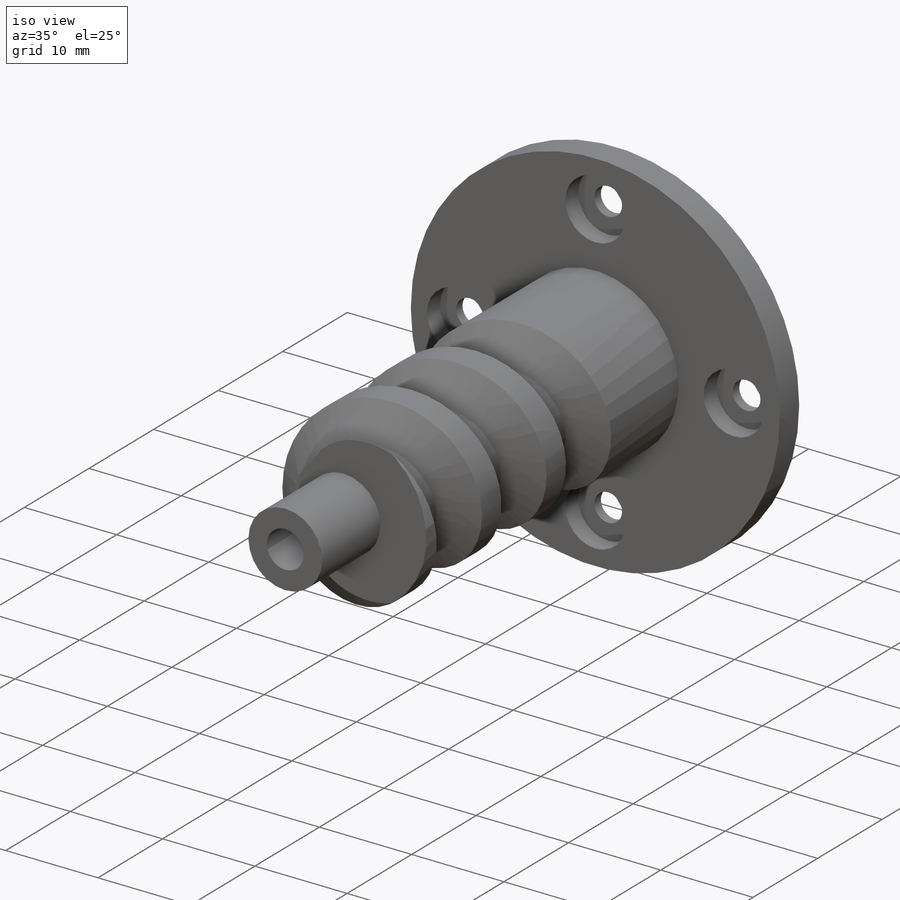
[diagram: iso view]
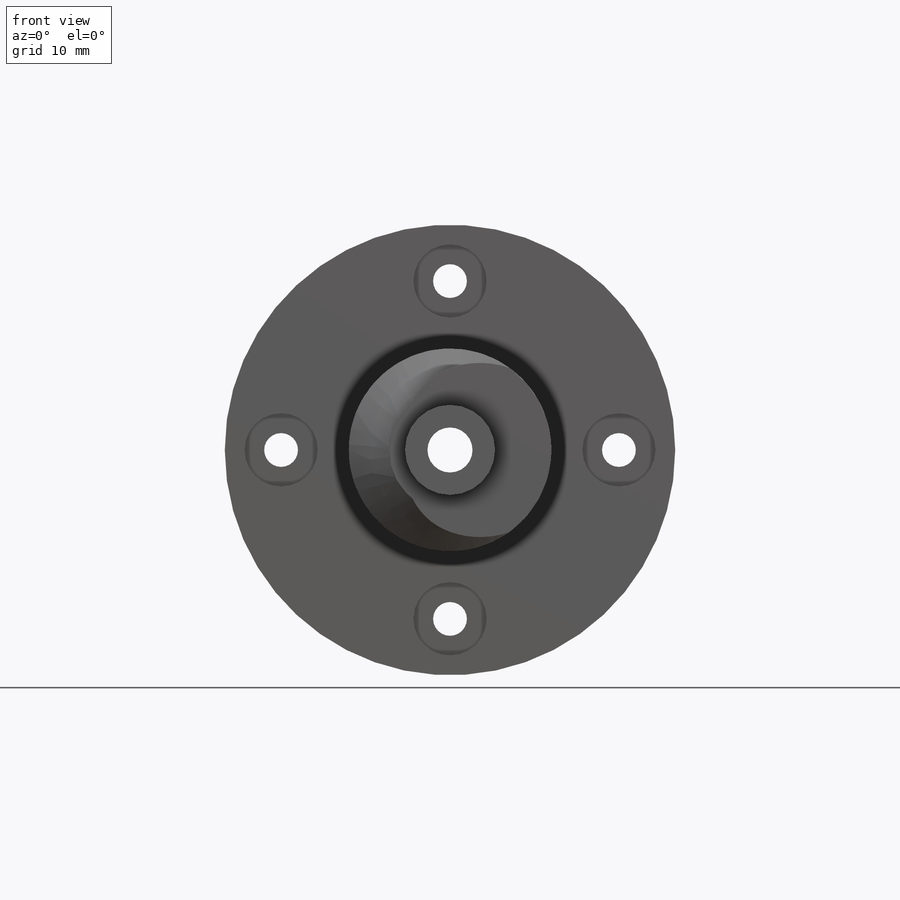
[diagram: front view]
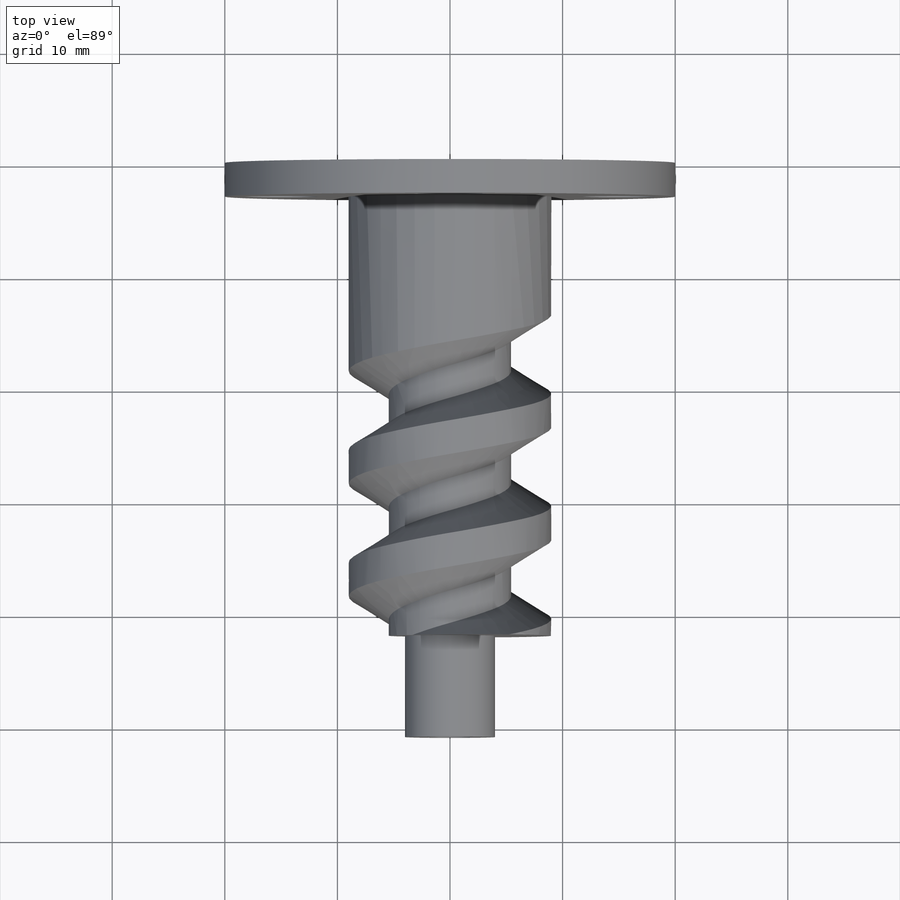
[diagram: top view]
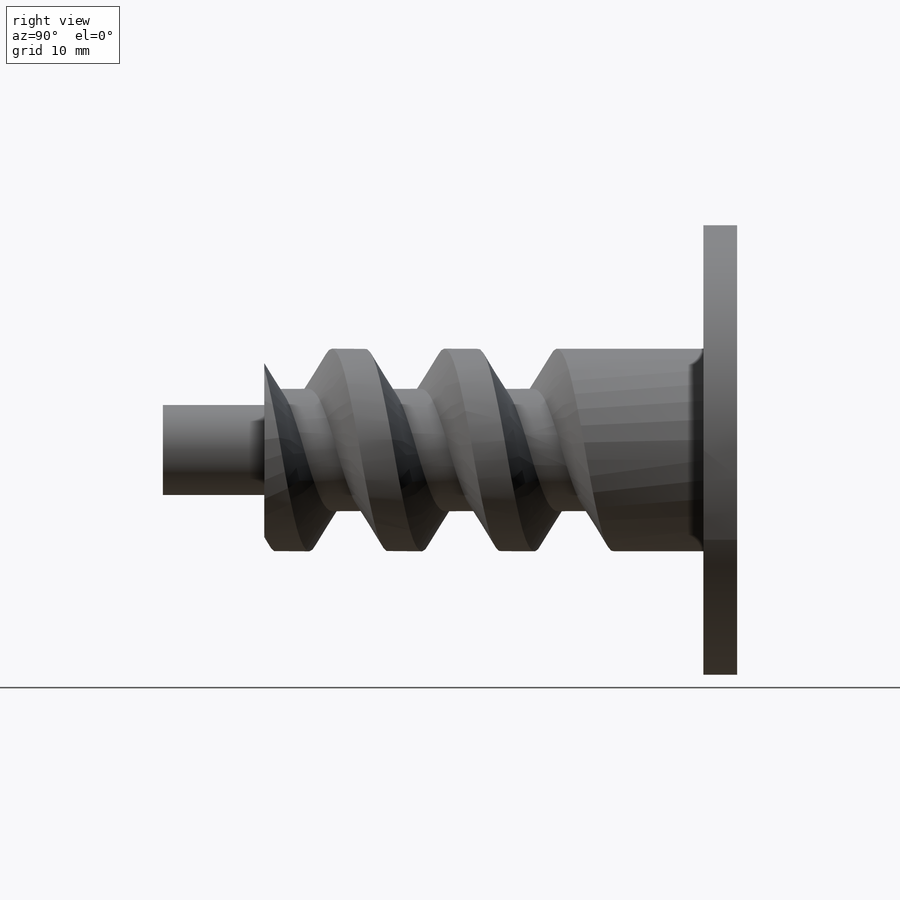
[diagram: right view]
SOLIDWORKS PART (.sldprt)
format: sldprt  version: not decoded by parser v0  size: 276,992 bytes
history: native  units: mm
features: sketch x10, extrude x4, cut_extrude x2, material x1, helix x1, sweep x1, hole x1 (+14 scaffold rows collapsed)
feature tree (34):
  scaffold x14  (default folders/planes/origin — collapsed)
  material  "Material <not specified>"
  sketch  "Sketch1"  dims[D1=40.0mm]
  extrude  "Extrude1"  Depth=3mm
  sketch  "Sketch2"  dims[D1=18.0mm]
  extrude  "Extrude2"  Depth=6mm
  sketch  "Sketch3"  dims[D1=18.0mm]
  extrude  "Extrude3"  Depth=33mm
  sketch  "Sketch4"
  helix  "Helix/Spiral1"  Pitch=30mm
  sketch  "Sketch5"  dims[D1=10.5mm D2=2.5mm]
  sweep  "Cut-Sweep1"
  sketch  "Sketch6"  dims[D1=8.0mm]
  extrude  "Extrude4"  Depth=9mm
  hole  "CBORE for M3 Pan Head Machine Screw1"  Diameter=3mm Depth=3mm
  sketch  "3DSketch1"  dims[D1=30.0mm D2=30.0mm]
  sketch  "Sketch7"  dims[hole-wizard template sketch: 42 standard entries collapsed; hole parameters kept: c12.Thru Hole Depth=3.0mm c12.C'Bore Dia.=6.5mm c12.C'Bore Depth=2.0mm]
  sketch  "Sketch8"  dims[D1=4.0mm]
  cut_extrude  "Extrude5"  [1 undecoded]
  sketch  "Sketch9"  dims[D1=6.5mm]
  cut_extrude  "Extrude6"  Depth=3mm
decode coverage: 16 of 19 modeling features carry decoded parameters
note: ~ marks probable driven/reference dimensions
note: 1 parameter value undecoded
note: suppression state not decoded; provenance and decode notes live in map.json
